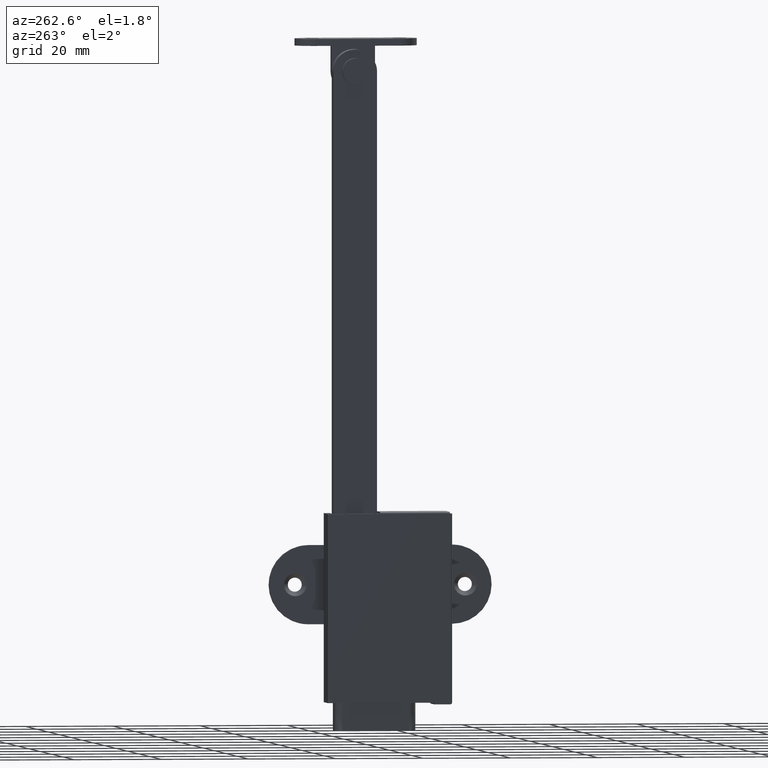
[diagram: clean part render]
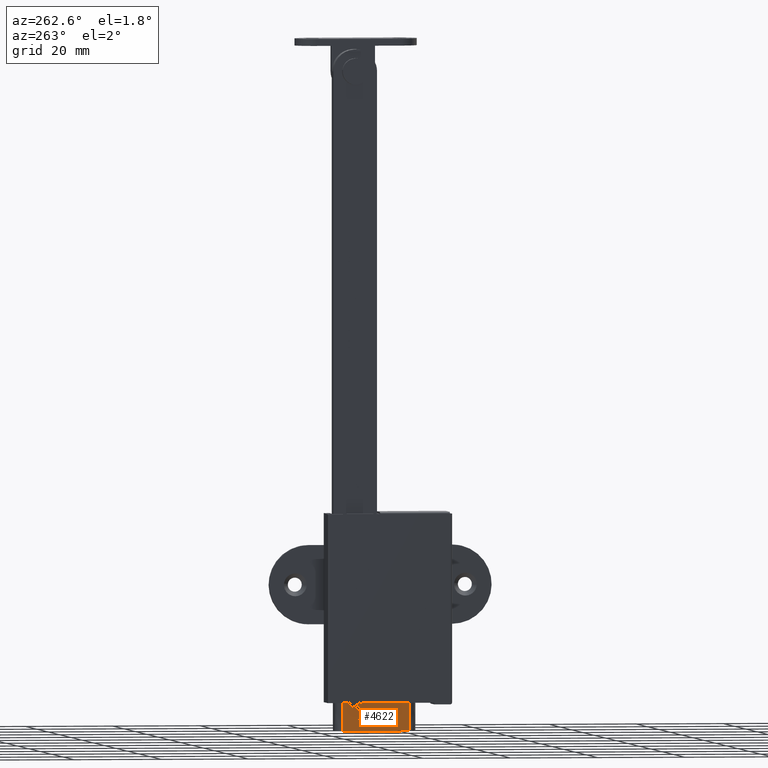
[diagram: same view with one face highlighted and labeled with its STEP entity id]
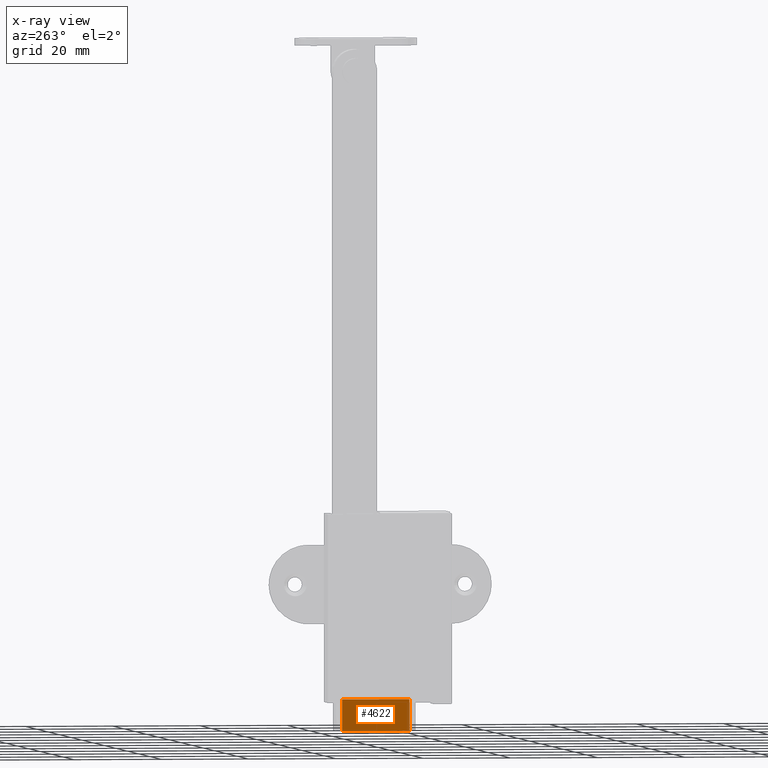
[diagram: x-ray of the same camera — body ghosted, the highlighted face saturated]
A machine part, auxiliary view. The second image highlights one B-rep face of the part: STEP entity #4622.
The next image is the same camera in x-ray: the body ghosted, the highlighted face saturated — about 0% of this face is hidden behind the body in this view.
In plain terms, the highlighted face is a freeform B-spline surface patch.
Its self-contained STEP definition (entity closure, byte-faithful):
#4422=CARTESIAN_POINT('',(-1.599990999999905,3.199988000000100,-215.799991000000010));
#4423=VERTEX_POINT('',#4422);
#4437=CARTESIAN_POINT('',(-1.599990999999905,-12.200001000000061,-215.799982000000000));
#4438=VERTEX_POINT('',#4437);
#4439=CARTESIAN_POINT('',(-1.599990999999905,-12.200001000000061,-215.799982000000000));
#4440=CARTESIAN_POINT('',(-1.599990999999905,3.199988000000100,-215.799991000000010));
#4441=QUASI_UNIFORM_CURVE('',1,(#4439,#4440),.UNSPECIFIED.,.F.,.U.);
#4442=EDGE_CURVE('',#4438,#4423,#4441,.T.);
#4476=CARTESIAN_POINT('',(-1.599990999999855,-12.199987999999999,-222.999985000000010));
#4477=VERTEX_POINT('',#4476);
#4478=CARTESIAN_POINT('',(-1.599990999999855,-12.199987999999999,-222.999985000000010));
#4479=CARTESIAN_POINT('',(-1.599990999999905,-12.200001000000061,-215.799982000000000));
#4480=QUASI_UNIFORM_CURVE('',1,(#4478,#4479),.UNSPECIFIED.,.F.,.U.);
#4481=EDGE_CURVE('',#4477,#4438,#4480,.T.);
#4520=CARTESIAN_POINT('',(-1.599990999999855,3.199988000000100,-222.999985000000010));
#4521=VERTEX_POINT('',#4520);
#4522=CARTESIAN_POINT('',(-1.599990999999905,3.199988000000100,-215.799991000000010));
#4523=CARTESIAN_POINT('',(-1.599990999999855,3.199988000000100,-222.999985000000010));
#4524=QUASI_UNIFORM_CURVE('',1,(#4522,#4523),.UNSPECIFIED.,.F.,.U.);
#4525=EDGE_CURVE('',#4423,#4521,#4524,.T.);
#4607=CARTESIAN_POINT('',(-1.599990999999905,-12.969230276137820,-215.440347972791390));
#4608=CARTESIAN_POINT('',(-1.599990999999905,3.969217826884388,-215.440347972791390));
#4609=CARTESIAN_POINT('',(-1.599990999999905,-12.969230276137820,-223.359624498917410));
#4610=CARTESIAN_POINT('',(-1.599990999999905,3.969217826884388,-223.359624498917410));
#4611=B_SPLINE_SURFACE_WITH_KNOTS('',1,1,((#4607,#4609),(#4608,#4610)),.UNSPECIFIED.,.F.,.F.,.U.,(2,2),(2,2),(0.0,16.938448103022210),(0.0,7.919276526125969),.UNSPECIFIED.);
#4612=ORIENTED_EDGE('',*,*,#4481,.T.);
#4613=ORIENTED_EDGE('',*,*,#4442,.T.);
#4614=ORIENTED_EDGE('',*,*,#4525,.T.);
#4615=CARTESIAN_POINT('',(-1.599990999999855,3.199988000000100,-222.999985000000010));
#4616=CARTESIAN_POINT('',(-1.599990999999855,-12.199987999999999,-222.999985000000010));
#4617=QUASI_UNIFORM_CURVE('',1,(#4615,#4616),.UNSPECIFIED.,.F.,.U.);
#4618=EDGE_CURVE('',#4521,#4477,#4617,.T.);
#4619=ORIENTED_EDGE('',*,*,#4618,.T.);
#4620=EDGE_LOOP('',(#4612,#4613,#4614,#4619));
#4621=FACE_OUTER_BOUND('',#4620,.T.);
#4622=ADVANCED_FACE('',(#4621),#4611,.T.);